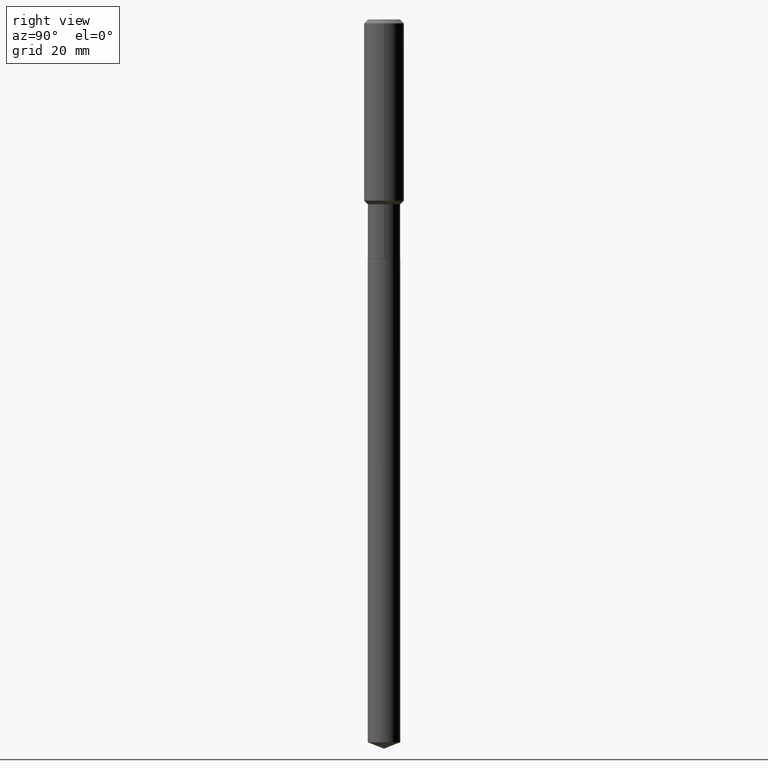
[diagram: clean part render]
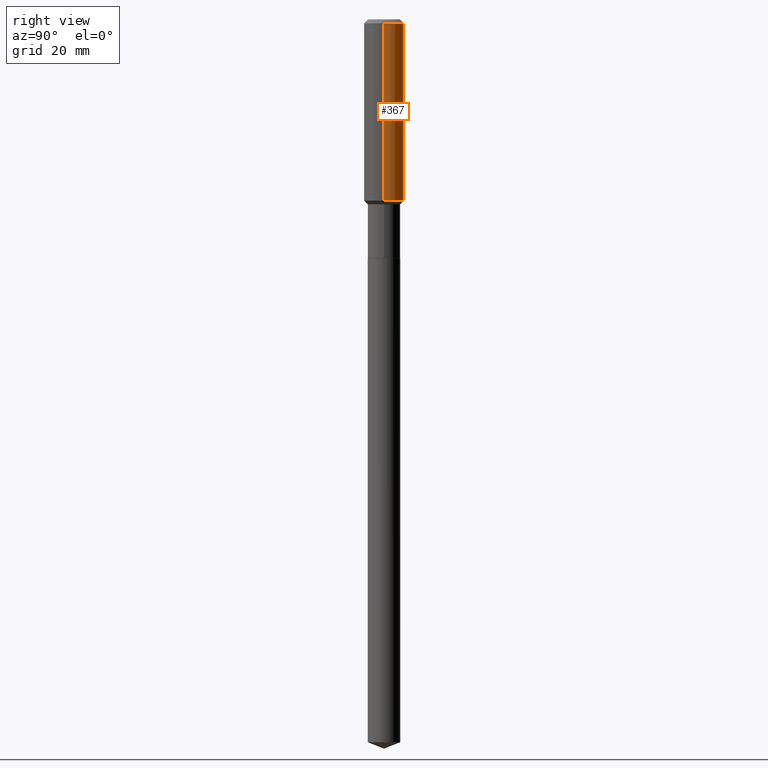
[diagram: same view with one face highlighted and labeled with its STEP entity id]
A machine part, right view. The second image highlights one B-rep face of the part: STEP entity #367.
In plain terms, the highlighted cylindrical surface (edge-blend (fillet) strip) has radius 4.0005 mm, axis along (-0, 0, 1).
Its self-contained STEP definition (entity closure, byte-faithful):
#15 = DIRECTION ( 'NONE',  ( 1.000000000000000000, -6.982962677686265922E-15, 0.000000000000000000 ) ) ;
#46 = VECTOR ( 'NONE', #117, 39.37007874015748143 ) ;
#52 = CYLINDRICAL_SURFACE ( 'NONE', #270, 0.1575000000000000844 ) ;
#86 = EDGE_CURVE ( 'NONE', #384, #194, #329, .T. ) ;
#89 = ORIENTED_EDGE ( 'NONE', *, *, #365, .T. ) ;
#117 = DIRECTION ( 'NONE',  ( -2.445468806185136877E-29, 3.491481338843145188E-15, 1.000000000000000000 ) ) ;
#157 = DIRECTION ( 'NONE',  ( 1.000000000000000000, -6.982962677686267499E-15, 4.876176775795936353E-29 ) ) ;
#160 = AXIS2_PLACEMENT_3D ( 'NONE', #340, #343, #15 ) ;
#163 = CARTESIAN_POINT ( 'NONE',  ( 0.1575000000000000011, -1.209798283909146741E-15, -0.03150000000000019451 ) ) ;
#165 = ORIENTED_EDGE ( 'NONE', *, *, #86, .F. ) ;
#172 = CARTESIAN_POINT ( 'NONE',  ( -0.1575000000000000011, -1.429501994466394853E-15, -0.03150000000000019451 ) ) ;
#191 = CARTESIAN_POINT ( 'NONE',  ( -0.1575000000000001676, -3.868127135581388640E-15, -1.428399999999999448 ) ) ;
#194 = VERTEX_POINT ( 'NONE', #172 ) ;
#195 = DIRECTION ( 'NONE',  ( -2.445468806185136597E-29, 3.491481338843145583E-15, 1.000000000000000000 ) ) ;
#198 = FACE_OUTER_BOUND ( 'NONE', #223, .T. ) ;
#200 = CIRCLE ( 'NONE', #207, 0.1575000000000001676 ) ;
#207 = AXIS2_PLACEMENT_3D ( 'NONE', #378, #195, #429 ) ;
#223 = EDGE_LOOP ( 'NONE', ( #334, #89, #165, #459 ) ) ;
#224 = DIRECTION ( 'NONE',  ( -2.445468806185136597E-29, 3.491481338843145583E-15, 1.000000000000000000 ) ) ;
#249 = LINE ( 'NONE', #366, #442 ) ;
#263 = CARTESIAN_POINT ( 'NONE',  ( 0.1575000000000000844, -1.099816621735587677E-15, 7.679978421878603638E-30 ) ) ;
#270 = AXIS2_PLACEMENT_3D ( 'NONE', #383, #224, #157 ) ;
#286 = DIRECTION ( 'NONE',  ( -2.445468806185136877E-29, 3.491481338843145188E-15, 1.000000000000000000 ) ) ;
#297 = LINE ( 'NONE', #263, #46 ) ;
#329 = CIRCLE ( 'NONE', #160, 0.1575000000000000011 ) ;
#334 = ORIENTED_EDGE ( 'NONE', *, *, #410, .T. ) ;
#340 = CARTESIAN_POINT ( 'NONE',  ( 7.703226739483228723E-31, -1.099816621735597661E-16, -0.03150000000000019451 ) ) ;
#343 = DIRECTION ( 'NONE',  ( -2.445468806185136597E-29, 3.491481338843145583E-15, 1.000000000000000000 ) ) ;
#365 = EDGE_CURVE ( 'NONE', #453, #194, #249, .T. ) ;
#366 = CARTESIAN_POINT ( 'NONE',  ( -0.1575000000000000844, 1.119104808822158392E-15, -7.747322767151481189E-30 ) ) ;
#367 = ADVANCED_FACE ( 'NONE', ( #198 ), #52, .T. ) ;
#375 = CARTESIAN_POINT ( 'NONE',  ( 0.1575000000000001676, -6.087048566139135302E-15, -1.428399999999999448 ) ) ;
#378 = CARTESIAN_POINT ( 'NONE',  ( 3.493107642754847449E-29, -4.987231944403547033E-15, -1.428399999999999448 ) ) ;
#383 = CARTESIAN_POINT ( 'NONE',  ( 0.000000000000000000, 0.000000000000000000, 0.000000000000000000 ) ) ;
#384 = VERTEX_POINT ( 'NONE', #163 ) ;
#385 = EDGE_CURVE ( 'NONE', #414, #384, #297, .T. ) ;
#410 = EDGE_CURVE ( 'NONE', #414, #453, #200, .T. ) ;
#414 = VERTEX_POINT ( 'NONE', #375 ) ;
#429 = DIRECTION ( 'NONE',  ( 1.000000000000000000, -6.982962677686267499E-15, 0.000000000000000000 ) ) ;
#442 = VECTOR ( 'NONE', #286, 39.37007874015748143 ) ;
#453 = VERTEX_POINT ( 'NONE', #191 ) ;
#459 = ORIENTED_EDGE ( 'NONE', *, *, #385, .F. ) ;